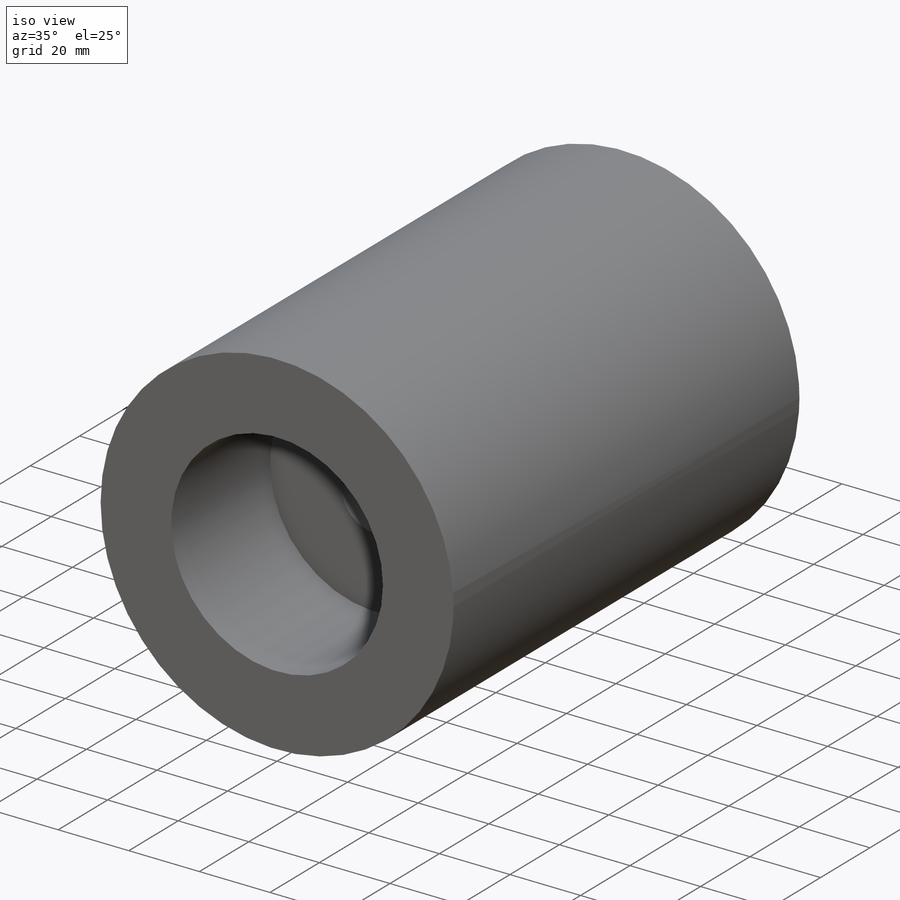
[diagram: iso view]
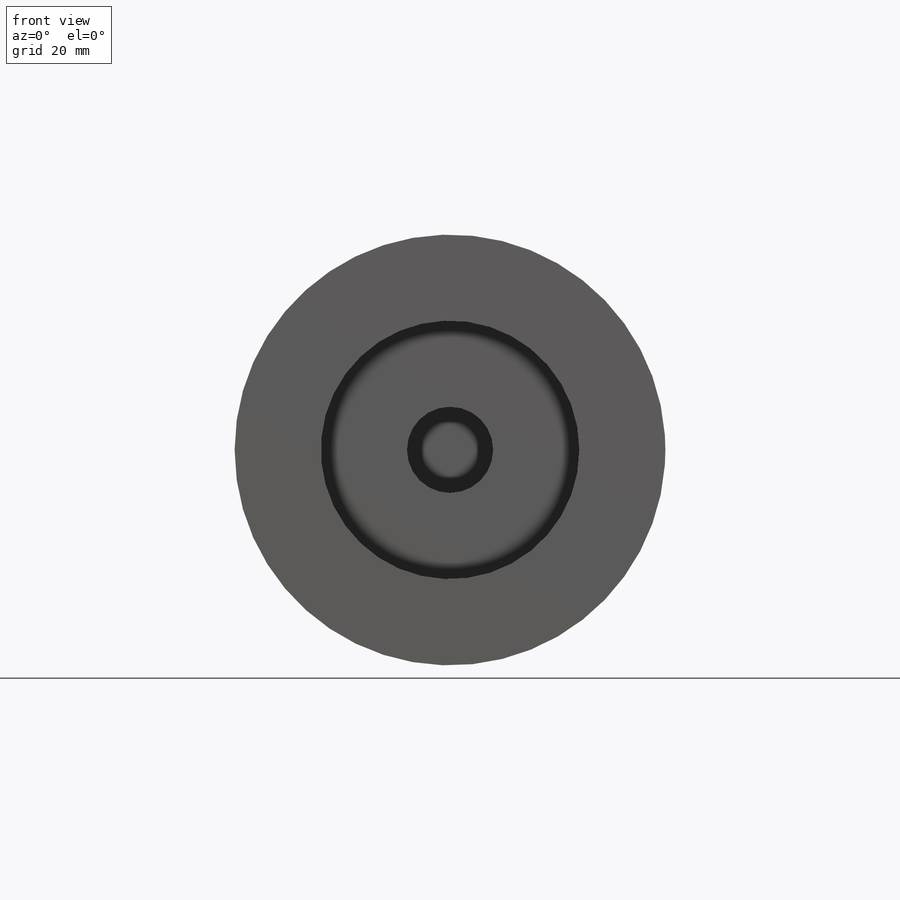
[diagram: front view]
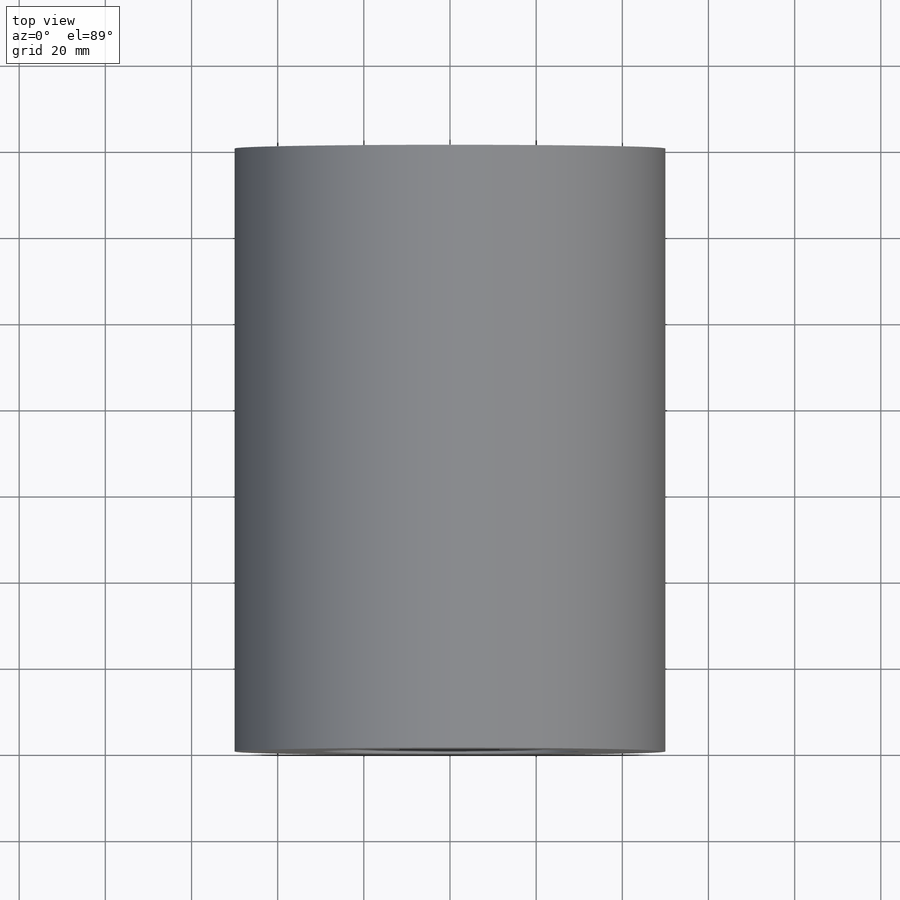
[diagram: top view]
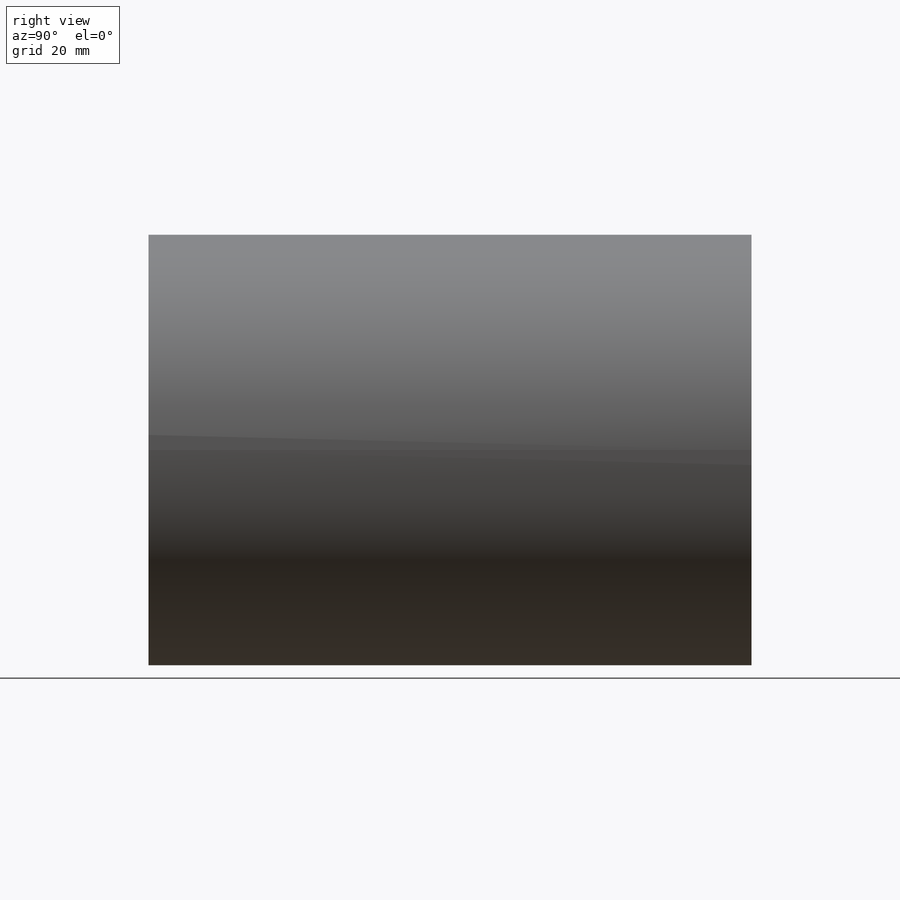
[diagram: right view]
SOLIDWORKS PART (.sldprt)
format: sldprt  version: not decoded by parser v0  size: 148,480 bytes
history: native  units: mm
features: sketch x3, cut_extrude x2, material x1, extrude x1 (+12 scaffold rows collapsed)
feature tree (19):
  scaffold x12  (default folders/planes/origin — collapsed)
  material  "Material <not specified>"
  sketch  "Sketch1"  dims[D1=100.0mm]
  extrude  "Boss-Extrude1"  Depth=140mm
  sketch  "Sketch2"  dims[D1=~19.526333mm]
  cut_extrude  "Cut-Extrude1"  Depth=40mm
  sketch  "Sketch3"  dims[D1=20.0mm]
  cut_extrude  "Cut-Extrude2"  Depth=120mm
decode coverage: 6 of 6 modeling features carry decoded parameters
note: ~ marks probable driven/reference dimensions
note: suppression state not decoded; provenance and decode notes live in map.json
